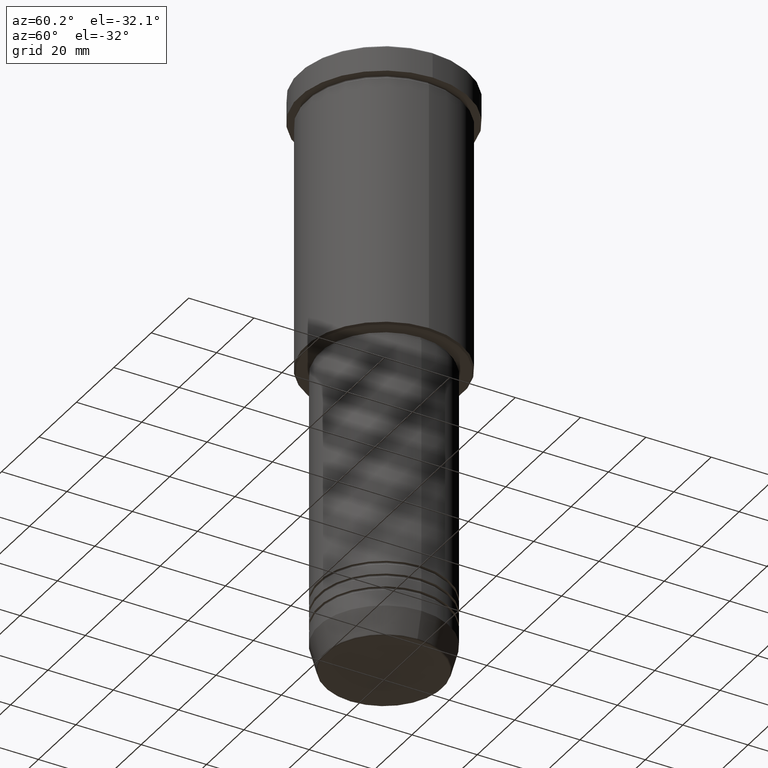
[diagram: clean part render]
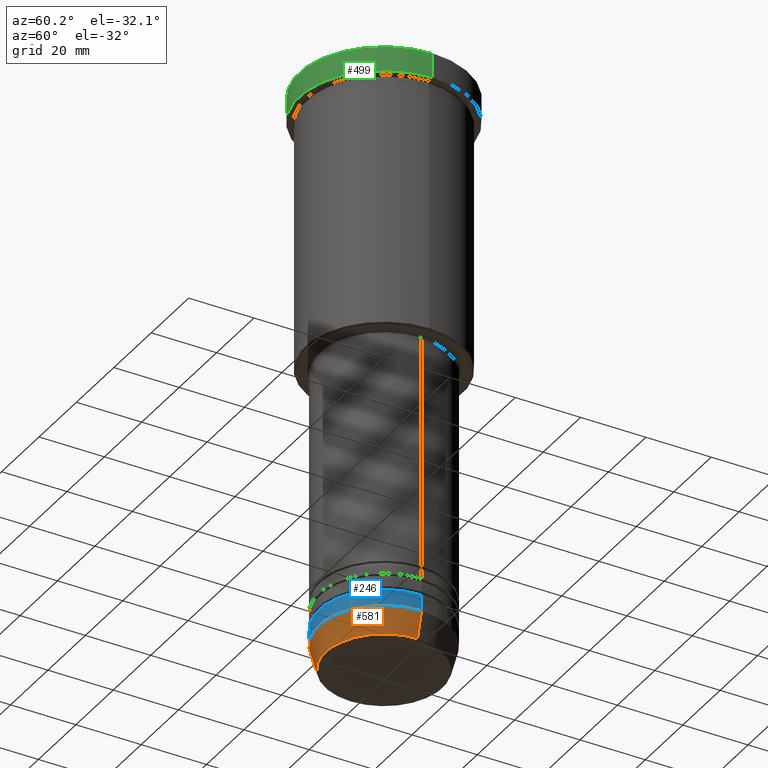
[diagram: same view with three faces highlighted in distinct colors, each labeled with its STEP entity id]
A machine part, auxiliary view with three faces highlighted in distinct colors.
Their STEP definitions:

[orange] entity #581 — the highlighted conical surface has half-angle 15 deg.
#21 = CARTESIAN_POINT ( 'NONE',  ( 0.000000000000000000, 0.000000000000000000, -172.0000000000000000 ) ) ;
#32 = ORIENTED_EDGE ( 'NONE', *, *, #347, .T. ) ;
#52 = DIRECTION ( 'NONE',  ( 1.000000000000000000, 0.000000000000000000, 0.000000000000000000 ) ) ;
#103 = ORIENTED_EDGE ( 'NONE', *, *, #423, .F. ) ;
#111 = AXIS2_PLACEMENT_3D ( 'NONE', #21, #381, #547 ) ;
#145 = CARTESIAN_POINT ( 'NONE',  ( 0.000000000000000000, 0.000000000000000000, -179.6294095225512706 ) ) ;
#208 = CIRCLE ( 'NONE', #618, 20.00000000000000355 ) ;
#214 = DIRECTION ( 'NONE',  ( 1.000000000000000000, 0.000000000000000000, 0.000000000000000000 ) ) ;
#240 = VECTOR ( 'NONE', #811, 1000.000000000000000 ) ;
#278 = EDGE_LOOP ( 'NONE', ( #103, #1164, #32, #838 ) ) ;
#297 = CARTESIAN_POINT ( 'NONE',  ( 20.00000000000000355, 0.000000000000000000, -172.0000000000000000 ) ) ;
#347 = EDGE_CURVE ( 'NONE', #567, #596, #761, .T. ) ;
#359 = VERTEX_POINT ( 'NONE', #649 ) ;
#381 = DIRECTION ( 'NONE',  ( -0.000000000000000000, -0.000000000000000000, 1.000000000000000000 ) ) ;
#423 = EDGE_CURVE ( 'NONE', #579, #359, #438, .T. ) ;
#438 = LINE ( 'NONE', #536, #240 ) ;
#465 = CARTESIAN_POINT ( 'NONE',  ( -17.95570587970607690, 2.324116685748021371E-15, -179.6294095225512706 ) ) ;
#473 = VECTOR ( 'NONE', #1014, 1000.000000000000000 ) ;
#525 = CARTESIAN_POINT ( 'NONE',  ( 17.95570587970607690, 0.000000000000000000, -179.6294095225512706 ) ) ;
#536 = CARTESIAN_POINT ( 'NONE',  ( -20.00000000000000355, 2.449293598294706907E-15, -172.0000000000000000 ) ) ;
#547 = DIRECTION ( 'NONE',  ( 1.000000000000000000, 0.000000000000000000, 0.000000000000000000 ) ) ;
#567 = VERTEX_POINT ( 'NONE', #525 ) ;
#571 = CIRCLE ( 'NONE', #757, 17.95570587970607690 ) ;
#579 = VERTEX_POINT ( 'NONE', #465 ) ;
#581 = ADVANCED_FACE ( 'NONE', ( #1016 ), #797, .T. ) ;
#596 = VERTEX_POINT ( 'NONE', #297 ) ;
#618 = AXIS2_PLACEMENT_3D ( 'NONE', #695, #1055, #52 ) ;
#649 = CARTESIAN_POINT ( 'NONE',  ( -20.00000000000000355, 2.449293598294706907E-15, -172.0000000000000000 ) ) ;
#660 = DIRECTION ( 'NONE',  ( -0.000000000000000000, -0.000000000000000000, 1.000000000000000000 ) ) ;
#695 = CARTESIAN_POINT ( 'NONE',  ( 0.000000000000000000, 0.000000000000000000, -172.0000000000000000 ) ) ;
#745 = CARTESIAN_POINT ( 'NONE',  ( 20.00000000000000355, 0.000000000000000000, -172.0000000000000000 ) ) ;
#757 = AXIS2_PLACEMENT_3D ( 'NONE', #145, #660, #214 ) ;
#761 = LINE ( 'NONE', #745, #473 ) ;
#788 = EDGE_CURVE ( 'NONE', #579, #567, #571, .T. ) ;
#797 = CONICAL_SURFACE ( 'NONE', #111, 20.00000000000000355, 0.2617993877991500740 ) ;
#802 = EDGE_CURVE ( 'NONE', #359, #596, #208, .T. ) ;
#811 = DIRECTION ( 'NONE',  ( -0.2588190451025213501, 3.169619151431772337E-17, 0.9659258262890680902 ) ) ;
#838 = ORIENTED_EDGE ( 'NONE', *, *, #802, .F. ) ;
#1014 = DIRECTION ( 'NONE',  ( 0.2588190451025213501, 0.000000000000000000, 0.9659258262890680902 ) ) ;
#1016 = FACE_OUTER_BOUND ( 'NONE', #278, .T. ) ;
#1055 = DIRECTION ( 'NONE',  ( -0.000000000000000000, -0.000000000000000000, 1.000000000000000000 ) ) ;
#1164 = ORIENTED_EDGE ( 'NONE', *, *, #788, .T. ) ;

[blue] entity #246 — the highlighted cylindrical surface (partial cylindrical patch) has radius 20 mm, axis along (-0, -0, 1).
#18 = VECTOR ( 'NONE', #828, 1000.000000000000000 ) ;
#52 = DIRECTION ( 'NONE',  ( 1.000000000000000000, 0.000000000000000000, 0.000000000000000000 ) ) ;
#79 = CARTESIAN_POINT ( 'NONE',  ( 0.000000000000000000, 0.000000000000000000, 0.000000000000000000 ) ) ;
#105 = LINE ( 'NONE', #463, #18 ) ;
#142 = ORIENTED_EDGE ( 'NONE', *, *, #535, .F. ) ;
#169 = CARTESIAN_POINT ( 'NONE',  ( 0.000000000000000000, 0.000000000000000000, -167.0000000000000000 ) ) ;
#208 = CIRCLE ( 'NONE', #618, 20.00000000000000355 ) ;
#246 = ADVANCED_FACE ( 'NONE', ( #902 ), #909, .T. ) ;
#289 = CARTESIAN_POINT ( 'NONE',  ( -20.00000000000000000, 2.449293598294706513E-15, -167.0000000000000000 ) ) ;
#297 = CARTESIAN_POINT ( 'NONE',  ( 20.00000000000000355, 0.000000000000000000, -172.0000000000000000 ) ) ;
#359 = VERTEX_POINT ( 'NONE', #649 ) ;
#364 = DIRECTION ( 'NONE',  ( 1.000000000000000000, 0.000000000000000000, 0.000000000000000000 ) ) ;
#436 = DIRECTION ( 'NONE',  ( 1.000000000000000000, 0.000000000000000000, 0.000000000000000000 ) ) ;
#455 = LINE ( 'NONE', #647, #617 ) ;
#463 = CARTESIAN_POINT ( 'NONE',  ( 20.00000000000000355, 0.000000000000000000, 0.000000000000000000 ) ) ;
#530 = VERTEX_POINT ( 'NONE', #995 ) ;
#535 = EDGE_CURVE ( 'NONE', #940, #530, #568, .T. ) ;
#549 = DIRECTION ( 'NONE',  ( -0.000000000000000000, -0.000000000000000000, 1.000000000000000000 ) ) ;
#568 = CIRCLE ( 'NONE', #936, 20.00000000000000000 ) ;
#596 = VERTEX_POINT ( 'NONE', #297 ) ;
#617 = VECTOR ( 'NONE', #968, 1000.000000000000000 ) ;
#618 = AXIS2_PLACEMENT_3D ( 'NONE', #695, #1055, #52 ) ;
#647 = CARTESIAN_POINT ( 'NONE',  ( -20.00000000000000355, 2.449293598294706907E-15, 0.000000000000000000 ) ) ;
#649 = CARTESIAN_POINT ( 'NONE',  ( -20.00000000000000355, 2.449293598294706907E-15, -172.0000000000000000 ) ) ;
#695 = CARTESIAN_POINT ( 'NONE',  ( 0.000000000000000000, 0.000000000000000000, -172.0000000000000000 ) ) ;
#696 = EDGE_CURVE ( 'NONE', #359, #940, #455, .T. ) ;
#730 = AXIS2_PLACEMENT_3D ( 'NONE', #79, #549, #436 ) ;
#776 = ORIENTED_EDGE ( 'NONE', *, *, #696, .F. ) ;
#800 = EDGE_LOOP ( 'NONE', ( #776, #1045, #966, #142 ) ) ;
#802 = EDGE_CURVE ( 'NONE', #359, #596, #208, .T. ) ;
#828 = DIRECTION ( 'NONE',  ( -0.000000000000000000, -0.000000000000000000, 1.000000000000000000 ) ) ;
#902 = FACE_OUTER_BOUND ( 'NONE', #800, .T. ) ;
#909 = CYLINDRICAL_SURFACE ( 'NONE', #730, 20.00000000000000355 ) ;
#936 = AXIS2_PLACEMENT_3D ( 'NONE', #169, #1000, #364 ) ;
#938 = EDGE_CURVE ( 'NONE', #596, #530, #105, .T. ) ;
#940 = VERTEX_POINT ( 'NONE', #289 ) ;
#966 = ORIENTED_EDGE ( 'NONE', *, *, #938, .T. ) ;
#968 = DIRECTION ( 'NONE',  ( -0.000000000000000000, -0.000000000000000000, 1.000000000000000000 ) ) ;
#995 = CARTESIAN_POINT ( 'NONE',  ( 20.00000000000000000, 0.000000000000000000, -167.0000000000000000 ) ) ;
#1000 = DIRECTION ( 'NONE',  ( -0.000000000000000000, -0.000000000000000000, 1.000000000000000000 ) ) ;
#1045 = ORIENTED_EDGE ( 'NONE', *, *, #802, .T. ) ;
#1055 = DIRECTION ( 'NONE',  ( -0.000000000000000000, -0.000000000000000000, 1.000000000000000000 ) ) ;

[green] entity #499 — the highlighted cylindrical surface (partial cylindrical patch) has radius 26 mm, axis along (-0, -0, 1).
#10 = LINE ( 'NONE', #1120, #446 ) ;
#61 = EDGE_LOOP ( 'NONE', ( #598, #723, #127, #226 ) ) ;
#83 = CARTESIAN_POINT ( 'NONE',  ( 0.000000000000000000, 0.000000000000000000, 0.000000000000000000 ) ) ;
#127 = ORIENTED_EDGE ( 'NONE', *, *, #913, .T. ) ;
#148 = AXIS2_PLACEMENT_3D ( 'NONE', #552, #652, #572 ) ;
#173 = CARTESIAN_POINT ( 'NONE',  ( 26.00000000000000000, 0.000000000000000000, -7.999999999999992895 ) ) ;
#204 = CARTESIAN_POINT ( 'NONE',  ( -26.00000000000000000, 3.184081677783118191E-15, -0.4999999999999970024 ) ) ;
#226 = ORIENTED_EDGE ( 'NONE', *, *, #930, .T. ) ;
#248 = EDGE_CURVE ( 'NONE', #628, #908, #453, .T. ) ;
#275 = DIRECTION ( 'NONE',  ( -0.000000000000000000, -0.000000000000000000, 1.000000000000000000 ) ) ;
#287 = DIRECTION ( 'NONE',  ( 1.000000000000000000, 0.000000000000000000, 0.000000000000000000 ) ) ;
#323 = CIRCLE ( 'NONE', #148, 26.00000000000000000 ) ;
#352 = DIRECTION ( 'NONE',  ( -0.000000000000000000, -0.000000000000000000, 1.000000000000000000 ) ) ;
#370 = DIRECTION ( 'NONE',  ( -0.000000000000000000, -0.000000000000000000, 1.000000000000000000 ) ) ;
#401 = VERTEX_POINT ( 'NONE', #993 ) ;
#427 = AXIS2_PLACEMENT_3D ( 'NONE', #825, #275, #743 ) ;
#440 = VERTEX_POINT ( 'NONE', #173 ) ;
#446 = VECTOR ( 'NONE', #370, 1000.000000000000000 ) ;
#453 = LINE ( 'NONE', #809, #935 ) ;
#496 = EDGE_CURVE ( 'NONE', #628, #440, #1029, .T. ) ;
#499 = ADVANCED_FACE ( 'NONE', ( #994 ), #906, .T. ) ;
#541 = AXIS2_PLACEMENT_3D ( 'NONE', #83, #554, #287 ) ;
#552 = CARTESIAN_POINT ( 'NONE',  ( 0.000000000000000000, 0.000000000000000000, -0.4999999999999970024 ) ) ;
#554 = DIRECTION ( 'NONE',  ( -0.000000000000000000, -0.000000000000000000, 1.000000000000000000 ) ) ;
#572 = DIRECTION ( 'NONE',  ( 1.000000000000000000, 0.000000000000000000, 0.000000000000000000 ) ) ;
#598 = ORIENTED_EDGE ( 'NONE', *, *, #248, .F. ) ;
#628 = VERTEX_POINT ( 'NONE', #724 ) ;
#652 = DIRECTION ( 'NONE',  ( 0.000000000000000000, 0.000000000000000000, -1.000000000000000000 ) ) ;
#723 = ORIENTED_EDGE ( 'NONE', *, *, #496, .T. ) ;
#724 = CARTESIAN_POINT ( 'NONE',  ( -26.00000000000000000, 3.184081677783118191E-15, -7.999999999999992895 ) ) ;
#743 = DIRECTION ( 'NONE',  ( 1.000000000000000000, 0.000000000000000000, 0.000000000000000000 ) ) ;
#809 = CARTESIAN_POINT ( 'NONE',  ( -26.00000000000000000, 3.184081677783118191E-15, 0.000000000000000000 ) ) ;
#825 = CARTESIAN_POINT ( 'NONE',  ( 0.000000000000000000, 0.000000000000000000, -7.999999999999992895 ) ) ;
#906 = CYLINDRICAL_SURFACE ( 'NONE', #541, 26.00000000000000000 ) ;
#908 = VERTEX_POINT ( 'NONE', #204 ) ;
#913 = EDGE_CURVE ( 'NONE', #440, #401, #10, .T. ) ;
#930 = EDGE_CURVE ( 'NONE', #401, #908, #323, .T. ) ;
#935 = VECTOR ( 'NONE', #352, 1000.000000000000000 ) ;
#993 = CARTESIAN_POINT ( 'NONE',  ( 26.00000000000000000, 0.000000000000000000, -0.4999999999999970024 ) ) ;
#994 = FACE_OUTER_BOUND ( 'NONE', #61, .T. ) ;
#1029 = CIRCLE ( 'NONE', #427, 26.00000000000000000 ) ;
#1120 = CARTESIAN_POINT ( 'NONE',  ( 26.00000000000000000, 0.000000000000000000, 0.000000000000000000 ) ) ;